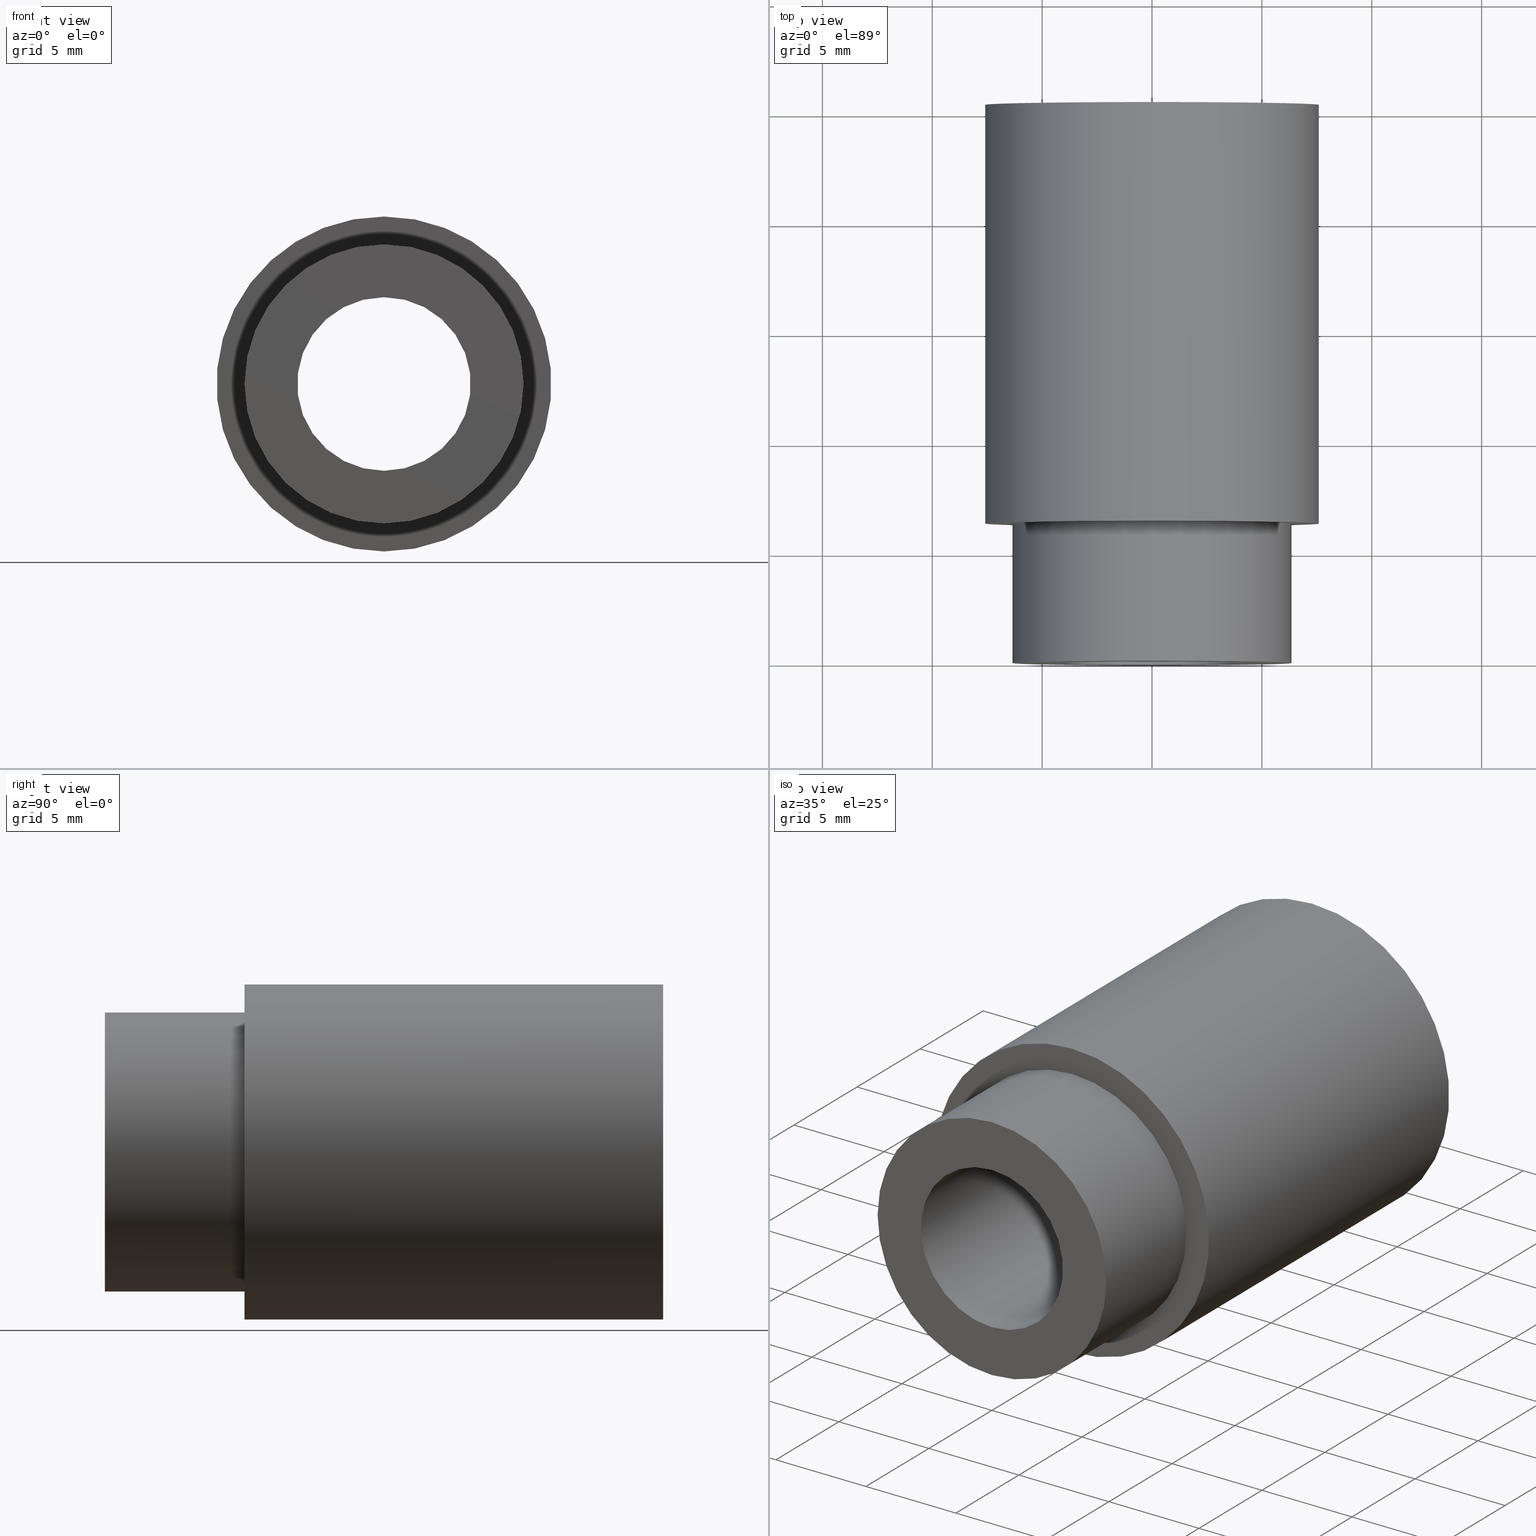
[diagram: canonical four-view strip — front | top / right | iso, engineering-drawing reading convention]
A machine part, canonical four-view strip (front | top / right | iso — engineering-drawing reading convention). The complete STEP part file that produces these views, byte-faithful:
ISO-10303-21;
HEADER;
FILE_DESCRIPTION (( 'STEP AP214' ),
    '1' );
FILE_NAME ('D1002341-v2_aLIGO_SUS_HSTS_Magnet Bushing.STEP',
    '2011-11-29T15:44:18',
    ( '' ),
    ( '' ),
    'SwSTEP 2.0',
    'SolidWorks 2012',
    '' );
FILE_SCHEMA (( 'AUTOMOTIVE_DESIGN' ));
ENDSEC;

DATA;
#1 = SURFACE_STYLE_FILL_AREA ( #52 ) ;
#2 = CYLINDRICAL_SURFACE ( 'NONE', #153, 0.1555000000000000000 ) ;
#3 = LENGTH_MEASURE_WITH_UNIT ( LENGTH_MEASURE( 0.02539999999999999900 ), #59 );
#4 = COLOUR_RGB ( '',0.6980392156862744700, 0.6980392156862744700, 0.6980392156862744700 ) ;
#5 = PRESENTATION_STYLE_ASSIGNMENT (( #50 ) ) ;
#6 = LENGTH_MEASURE_WITH_UNIT ( LENGTH_MEASURE( 0.02539999999999999900 ), #96 );
#7 = SHAPE_DEFINITION_REPRESENTATION ( #144, #159 ) ;
#8 = VERTEX_POINT ( 'NONE', #65 ) ;
#9 = AXIS2_PLACEMENT_3D ( 'NONE', #95, #25, #87 ) ;
#10 = AXIS2_PLACEMENT_3D ( 'NONE', #99, #129, #75 ) ;
#11 = AXIS2_PLACEMENT_3D ( 'NONE', #77, #98, #67 ) ;
#12 = AXIS2_PLACEMENT_3D ( 'NONE', #89, #119, #127 ) ;
#13 = AXIS2_PLACEMENT_3D ( 'NONE', #118, #35, #121 ) ;
#14 = AXIS2_PLACEMENT_3D ( 'NONE', #120, #101, #139 ) ;
#15 = VERTEX_POINT ( 'NONE', #55 ) ;
#16 = PRODUCT ( 'D1002341-v2_aLIGO_SUS_HSTS_Magnet Bushing', 'D1002341-v2_aLIGO_SUS_HSTS_Magnet Bushing', '', ( #132 ) ) ;
#17 = EDGE_CURVE ( 'NONE', #245, #248, #197, .T. ) ;
#18 = EDGE_CURVE ( 'NONE', #142, #181, #195, .T. ) ;
#19 = EDGE_CURVE ( 'NONE', #181, #286, #196, .T. ) ;
#20 = EDGE_CURVE ( 'NONE', #247, #15, #194, .T. ) ;
#21 = EDGE_CURVE ( 'NONE', #143, #15, #199, .T. ) ;
#22 = EDGE_CURVE ( 'NONE', #249, #247, #262, .T. ) ;
#23 = EDGE_CURVE ( 'NONE', #249, #143, #265, .T. ) ;
#24 = APPLICATION_PROTOCOL_DEFINITION ( 'draft international standard', 'automotive_design', 1998, #135 ) ;
#25 = DIRECTION ( 'NONE',  ( -0.0000000000000000000, -1.000000000000000000, -0.0000000000000000000 ) ) ;
#26 = DIRECTION ( 'NONE',  ( -0.0000000000000000000, -1.000000000000000000, -0.0000000000000000000 ) ) ;
#27 = CARTESIAN_POINT ( 'NONE',  ( 0.0000000000000000000, 0.0000000000000000000, 0.0000000000000000000 ) ) ;
#28 = APPLICATION_PROTOCOL_DEFINITION ( 'draft international standard', 'automotive_design', 1998, #42 ) ;
#29 = CARTESIAN_POINT ( 'NONE',  ( 0.0000000000000000000, 1.000000000000000000, -0.1555000000000000000 ) ) ;
#30 = CARTESIAN_POINT ( 'NONE',  ( 0.0000000000000000000, 1.000000000000000000, -0.1555000000000000000 ) ) ;
#31 = CARTESIAN_POINT ( 'NONE',  ( 1.904325772674134300E-017, 1.000000000000000000, 0.1555000000000000000 ) ) ;
#32 = CARTESIAN_POINT ( 'NONE',  ( 0.0000000000000000000, 0.2499999999999999700, 0.0000000000000000000 ) ) ;
#33 = PLANE ( 'NONE',  #14 ) ;
#34 = DIRECTION ( 'NONE',  ( 0.0000000000000000000, 0.0000000000000000000, -1.000000000000000000 ) ) ;
#35 = DIRECTION ( 'NONE',  ( 0.0000000000000000000, 1.000000000000000000, 0.0000000000000000000 ) ) ;
#36 =( NAMED_UNIT ( * ) SI_UNIT ( $, .STERADIAN. ) SOLID_ANGLE_UNIT ( ) );
#37 =( NAMED_UNIT ( * ) PLANE_ANGLE_UNIT ( ) SI_UNIT ( $, .RADIAN. ) );
#38 =( CONVERSION_BASED_UNIT ( 'INCH', #3 ) LENGTH_UNIT ( ) NAMED_UNIT ( #293 ) );
#39 =( NAMED_UNIT ( * ) PLANE_ANGLE_UNIT ( ) SI_UNIT ( $, .RADIAN. ) );
#40 = DIRECTION ( 'NONE',  ( -0.0000000000000000000, -1.000000000000000000, -0.0000000000000000000 ) ) ;
#41 = DIRECTION ( 'NONE',  ( 0.0000000000000000000, 0.0000000000000000000, -1.000000000000000000 ) ) ;
#42 = APPLICATION_CONTEXT ( 'automotive_design' ) ;
#43 = DIRECTION ( 'NONE',  ( 0.0000000000000000000, 0.0000000000000000000, -1.000000000000000000 ) ) ;
#44 = SURFACE_SIDE_STYLE ('',( #1 ) ) ;
#45 = DIRECTION ( 'NONE',  ( 0.0000000000000000000, 1.000000000000000000, 0.0000000000000000000 ) ) ;
#46 = FILL_AREA_STYLE_COLOUR ( '', #4 ) ;
#47 = CARTESIAN_POINT ( 'NONE',  ( 0.0000000000000000000, 1.000000000000000000, 0.0000000000000000000 ) ) ;
#48 = CARTESIAN_POINT ( 'NONE',  ( 1.904325772674134300E-017, 1.000000000000000000, 0.1555000000000000000 ) ) ;
#49 = CARTESIAN_POINT ( 'NONE',  ( 1.904325772674134300E-017, 0.0000000000000000000, 0.1555000000000000000 ) ) ;
#50 = SURFACE_STYLE_USAGE ( .BOTH. , #44 ) ;
#51 = DIRECTION ( 'NONE',  ( 0.0000000000000000000, 0.0000000000000000000, -1.000000000000000000 ) ) ;
#52 = FILL_AREA_STYLE ('',( #46 ) ) ;
#53 = CARTESIAN_POINT ( 'NONE',  ( 3.673940397442058900E-017, 0.0000000000000000000, 0.2999999999999999900 ) ) ;
#54 = DIRECTION ( 'NONE',  ( 0.0000000000000000000, 0.0000000000000000000, -1.000000000000000000 ) ) ;
#55 = CARTESIAN_POINT ( 'NONE',  ( 0.0000000000000000000, 0.0000000000000000000, -0.1555000000000000000 ) ) ;
#56 = CARTESIAN_POINT ( 'NONE',  ( 0.0000000000000000000, -3.061616997868383000E-017, 0.0000000000000000000 ) ) ;
#57 = DIRECTION ( 'NONE',  ( 0.0000000000000000000, -1.000000000000000000, 0.0000000000000000000 ) ) ;
#58 = DIRECTION ( 'NONE',  ( -0.0000000000000000000, -1.000000000000000000, -0.0000000000000000000 ) ) ;
#59 =( LENGTH_UNIT ( ) NAMED_UNIT ( * ) SI_UNIT ( $, .METRE. ) );
#60 = DIRECTION ( 'NONE',  ( 0.0000000000000000000, 0.0000000000000000000, -1.000000000000000000 ) ) ;
#61 = CARTESIAN_POINT ( 'NONE',  ( 0.0000000000000000000, 0.0000000000000000000, 0.0000000000000000000 ) ) ;
#62 =( NAMED_UNIT ( * ) SI_UNIT ( $, .STERADIAN. ) SOLID_ANGLE_UNIT ( ) );
#63 = DIRECTION ( 'NONE',  ( -0.0000000000000000000, -1.000000000000000000, -0.0000000000000000000 ) ) ;
#64 = CARTESIAN_POINT ( 'NONE',  ( 3.061616997868383000E-017, -3.061616997868383000E-017, 0.2500000000000000000 ) ) ;
#65 = CARTESIAN_POINT ( 'NONE',  ( 0.0000000000000000000, -3.061616997868383000E-017, -0.2500000000000000000 ) ) ;
#66 = CARTESIAN_POINT ( 'NONE',  ( 0.0000000000000000000, 0.2500000000000000000, -0.2999999999999999900 ) ) ;
#67 = DIRECTION ( 'NONE',  ( 0.0000000000000000000, 0.0000000000000000000, -1.000000000000000000 ) ) ;
#68 = CARTESIAN_POINT ( 'NONE',  ( 0.0000000000000000000, 1.000000000000000000, 0.0000000000000000000 ) ) ;
#69 = CARTESIAN_POINT ( 'NONE',  ( 0.0000000000000000000, -3.061616997868383000E-017, 0.0000000000000000000 ) ) ;
#70 = DIRECTION ( 'NONE',  ( 0.0000000000000000000, -1.000000000000000000, 0.0000000000000000000 ) ) ;
#71 = DIRECTION ( 'NONE',  ( 0.0000000000000000000, 0.0000000000000000000, -1.000000000000000000 ) ) ;
#72 = CARTESIAN_POINT ( 'NONE',  ( 0.0000000000000000000, 0.0000000000000000000, -0.2500000000000000000 ) ) ;
#73 = CARTESIAN_POINT ( 'NONE',  ( 0.0000000000000000000, 0.2499999999999999700, -0.2500000000000000000 ) ) ;
#74 = CARTESIAN_POINT ( 'NONE',  ( 3.673940397442058900E-017, 0.2500000000000000000, 0.2999999999999999900 ) ) ;
#75 = DIRECTION ( 'NONE',  ( 0.0000000000000000000, 0.0000000000000000000, -1.000000000000000000 ) ) ;
#76 = PLANE ( 'NONE',  #13 ) ;
#77 = CARTESIAN_POINT ( 'NONE',  ( 0.0000000000000000000, 1.000000000000000000, 0.0000000000000000000 ) ) ;
#78 = CARTESIAN_POINT ( 'NONE',  ( -0.2500000000000000000, 0.2500000000000000000, 0.0000000000000000000 ) ) ;
#79 = CARTESIAN_POINT ( 'NONE',  ( 0.0000000000000000000, 1.000000000000000000, 0.0000000000000000000 ) ) ;
#80 = DIRECTION ( 'NONE',  ( 0.0000000000000000000, 0.0000000000000000000, -1.000000000000000000 ) ) ;
#81 = DIRECTION ( 'NONE',  ( 0.0000000000000000000, 0.0000000000000000000, -1.000000000000000000 ) ) ;
#82 = DIRECTION ( 'NONE',  ( -0.0000000000000000000, -1.000000000000000000, -0.0000000000000000000 ) ) ;
#83 = SURFACE_STYLE_USAGE ( .BOTH. , #90 ) ;
#84 =( LENGTH_UNIT ( ) NAMED_UNIT ( * ) SI_UNIT ( $, .METRE. ) );
#85 =( CONVERSION_BASED_UNIT ( 'INCH', #269 ) LENGTH_UNIT ( ) NAMED_UNIT ( #299 ) );
#86 = DIRECTION ( 'NONE',  ( 0.0000000000000000000, 0.0000000000000000000, -1.000000000000000000 ) ) ;
#87 = DIRECTION ( 'NONE',  ( 0.0000000000000000000, 0.0000000000000000000, -1.000000000000000000 ) ) ;
#88 = CARTESIAN_POINT ( 'NONE',  ( 0.0000000000000000000, 0.2500000000000000000, 0.0000000000000000000 ) ) ;
#89 = CARTESIAN_POINT ( 'NONE',  ( 0.0000000000000000000, 0.0000000000000000000, 0.0000000000000000000 ) ) ;
#90 = SURFACE_SIDE_STYLE ('',( #266 ) ) ;
#91 =( NAMED_UNIT ( * ) PLANE_ANGLE_UNIT ( ) SI_UNIT ( $, .RADIAN. ) );
#92 = DIRECTION ( 'NONE',  ( 0.0000000000000000000, -1.000000000000000000, 0.0000000000000000000 ) ) ;
#93 = FILL_AREA_STYLE_COLOUR ( '', #267 ) ;
#94 = CARTESIAN_POINT ( 'NONE',  ( 0.0000000000000000000, 1.000000000000000000, 0.0000000000000000000 ) ) ;
#95 = CARTESIAN_POINT ( 'NONE',  ( 0.0000000000000000000, 0.0000000000000000000, 0.0000000000000000000 ) ) ;
#96 =( LENGTH_UNIT ( ) NAMED_UNIT ( * ) SI_UNIT ( $, .METRE. ) );
#97 =( NAMED_UNIT ( * ) SI_UNIT ( $, .STERADIAN. ) SOLID_ANGLE_UNIT ( ) );
#98 = DIRECTION ( 'NONE',  ( -0.0000000000000000000, -1.000000000000000000, -0.0000000000000000000 ) ) ;
#99 = CARTESIAN_POINT ( 'NONE',  ( 0.0000000000000000000, 0.0000000000000000000, 0.0000000000000000000 ) ) ;
#100 = DIRECTION ( 'NONE',  ( -0.0000000000000000000, -1.000000000000000000, -0.0000000000000000000 ) ) ;
#101 = DIRECTION ( 'NONE',  ( 0.0000000000000000000, -1.000000000000000000, -0.0000000000000000000 ) ) ;
#102 = DIRECTION ( 'NONE',  ( -0.0000000000000000000, -1.000000000000000000, -0.0000000000000000000 ) ) ;
#103 = DIRECTION ( 'NONE',  ( -0.0000000000000000000, -1.000000000000000000, -0.0000000000000000000 ) ) ;
#104 = DIRECTION ( 'NONE',  ( 0.0000000000000000000, -0.0000000000000000000, 1.000000000000000000 ) ) ;
#105 = DIRECTION ( 'NONE',  ( 0.0000000000000000000, 0.0000000000000000000, -1.000000000000000000 ) ) ;
#106 = PLANE ( 'NONE',  #151 ) ;
#107 = CARTESIAN_POINT ( 'NONE',  ( 0.0000000000000000000, 0.0000000000000000000, 0.0000000000000000000 ) ) ;
#108 = CARTESIAN_POINT ( 'NONE',  ( 0.0000000000000000000, 1.000000000000000000, 0.0000000000000000000 ) ) ;
#109 = DIRECTION ( 'NONE',  ( -0.0000000000000000000, -1.000000000000000000, -0.0000000000000000000 ) ) ;
#110 = DIRECTION ( 'NONE',  ( -0.0000000000000000000, -1.000000000000000000, -0.0000000000000000000 ) ) ;
#111 = CARTESIAN_POINT ( 'NONE',  ( 3.673940397442058900E-017, 1.000000000000000000, 0.2999999999999999900 ) ) ;
#112 = DIRECTION ( 'NONE',  ( -0.0000000000000000000, -1.000000000000000000, -0.0000000000000000000 ) ) ;
#113 = CARTESIAN_POINT ( 'NONE',  ( 0.0000000000000000000, 0.0000000000000000000, -0.2999999999999999900 ) ) ;
#114 = DIRECTION ( 'NONE',  ( 0.0000000000000000000, 0.0000000000000000000, -1.000000000000000000 ) ) ;
#115 = DIRECTION ( 'NONE',  ( 0.0000000000000000000, -1.000000000000000000, 0.0000000000000000000 ) ) ;
#116 = FILL_AREA_STYLE ('',( #93 ) ) ;
#117 = DIRECTION ( 'NONE',  ( 0.0000000000000000000, 0.0000000000000000000, -1.000000000000000000 ) ) ;
#118 = CARTESIAN_POINT ( 'NONE',  ( 0.0000000000000000000, -1.530808498934191500E-017, 0.0000000000000000000 ) ) ;
#119 = DIRECTION ( 'NONE',  ( -0.0000000000000000000, -1.000000000000000000, -0.0000000000000000000 ) ) ;
#120 = CARTESIAN_POINT ( 'NONE',  ( -0.2999999999999999900, 1.000000000000000000, 0.0000000000000000000 ) ) ;
#121 = DIRECTION ( 'NONE',  ( 0.0000000000000000000, -0.0000000000000000000, 1.000000000000000000 ) ) ;
#122 = CARTESIAN_POINT ( 'NONE',  ( 0.0000000000000000000, 1.000000000000000000, -0.2999999999999999900 ) ) ;
#123 = DIRECTION ( 'NONE',  ( -0.0000000000000000000, -1.000000000000000000, -0.0000000000000000000 ) ) ;
#124 = DIRECTION ( 'NONE',  ( 0.0000000000000000000, 0.0000000000000000000, 1.000000000000000000 ) ) ;
#125 = CARTESIAN_POINT ( 'NONE',  ( 3.061616997868383000E-017, 0.2499999999999999700, 0.2500000000000000000 ) ) ;
#126 = DIRECTION ( 'NONE',  ( -0.0000000000000000000, -1.000000000000000000, -0.0000000000000000000 ) ) ;
#127 = DIRECTION ( 'NONE',  ( 0.0000000000000000000, 0.0000000000000000000, -1.000000000000000000 ) ) ;
#128 = DIRECTION ( 'NONE',  ( -0.0000000000000000000, -1.000000000000000000, -0.0000000000000000000 ) ) ;
#129 = DIRECTION ( 'NONE',  ( -0.0000000000000000000, -1.000000000000000000, -0.0000000000000000000 ) ) ;
#130 =( CONVERSION_BASED_UNIT ( 'INCH', #6 ) LENGTH_UNIT ( ) NAMED_UNIT ( #298 ) );
#131 = CARTESIAN_POINT ( 'NONE',  ( 0.0000000000000000000, 0.2499999999999999700, 0.0000000000000000000 ) ) ;
#132 = PRODUCT_CONTEXT ( 'NONE', #42, 'mechanical' ) ;
#133 = DIRECTION ( 'NONE',  ( 1.000000000000000000, 0.0000000000000000000, 0.0000000000000000000 ) ) ;
#134 = DIRECTION ( 'NONE',  ( 0.0000000000000000000, 0.0000000000000000000, -1.000000000000000000 ) ) ;
#135 = APPLICATION_CONTEXT ( 'automotive_design' ) ;
#136 = DIRECTION ( 'NONE',  ( -0.0000000000000000000, -1.000000000000000000, -0.0000000000000000000 ) ) ;
#137 = CARTESIAN_POINT ( 'NONE',  ( 3.061616997868383000E-017, 0.0000000000000000000, 0.2500000000000000000 ) ) ;
#138 = CARTESIAN_POINT ( 'NONE',  ( 0.0000000000000000000, 0.0000000000000000000, 0.0000000000000000000 ) ) ;
#139 = DIRECTION ( 'NONE',  ( 0.0000000000000000000, 0.0000000000000000000, -1.000000000000000000 ) ) ;
#140 = DIRECTION ( 'NONE',  ( -0.0000000000000000000, -1.000000000000000000, -0.0000000000000000000 ) ) ;
#141 = CARTESIAN_POINT ( 'NONE',  ( 0.0000000000000000000, 0.2500000000000000000, 0.0000000000000000000 ) ) ;
#142 = VERTEX_POINT ( 'NONE', #122 ) ;
#143 = VERTEX_POINT ( 'NONE', #29 ) ;
#144 = PRODUCT_DEFINITION_SHAPE ( 'NONE', 'NONE',  #163 ) ;
#145 = PRODUCT_DEFINITION_CONTEXT ( 'detailed design', #135, 'design' ) ;
#146 = EDGE_LOOP ( 'NONE', ( #189, #252 ) ) ;
#147 = EDGE_LOOP ( 'NONE', ( #231, #255 ) ) ;
#148 = EDGE_LOOP ( 'NONE', ( #188, #260, #253, #261 ) ) ;
#149 = EDGE_LOOP ( 'NONE', ( #258, #254, #256, #257 ) ) ;
#150 =( GEOMETRIC_REPRESENTATION_CONTEXT ( 3 ) GLOBAL_UNCERTAINTY_ASSIGNED_CONTEXT ( ( #156 ) ) GLOBAL_UNIT_ASSIGNED_CONTEXT ( ( #38, #37, #97 ) ) REPRESENTATION_CONTEXT ( 'NONE', 'WORKASPACE' ) );
#151 = AXIS2_PLACEMENT_3D ( 'NONE', #78, #45, #104 ) ;
#152 = STYLED_ITEM ( 'NONE', ( #5 ), #159 ) ;
#153 = AXIS2_PLACEMENT_3D ( 'NONE', #47, #109, #105 ) ;
#154 = PRESENTATION_LAYER_ASSIGNMENT (  '', '', ( #152 ) ) ;
#155 = MECHANICAL_DESIGN_GEOMETRIC_PRESENTATION_REPRESENTATION (  '', ( #152 ), #161 ) ;
#156 = UNCERTAINTY_MEASURE_WITH_UNIT (LENGTH_MEASURE( 1.000000000000000100E-005 ), #38, 'distance_accuracy_value', 'NONE');
#157 = UNCERTAINTY_MEASURE_WITH_UNIT (LENGTH_MEASURE( 1.000000000000000100E-005 ), #85, 'distance_accuracy_value', 'NONE');
#158 = MANIFOLD_SOLID_BREP ( 'Cut-Extrude1', #184 ) ;
#159 = ADVANCED_BREP_SHAPE_REPRESENTATION ( 'D1002341-v2_aLIGO_SUS_HSTS_Magnet Bushing', ( #158, #162 ), #150 ) ;
#160 = UNCERTAINTY_MEASURE_WITH_UNIT (LENGTH_MEASURE( 1.000000000000000100E-005 ), #130, 'distance_accuracy_value', 'NONE');
#161 =( GEOMETRIC_REPRESENTATION_CONTEXT ( 3 ) GLOBAL_UNCERTAINTY_ASSIGNED_CONTEXT ( ( #160 ) ) GLOBAL_UNIT_ASSIGNED_CONTEXT ( ( #130, #91, #62 ) ) REPRESENTATION_CONTEXT ( 'NONE', 'WORKASPACE' ) );
#162 = AXIS2_PLACEMENT_3D ( 'NONE', #138, #124, #133 ) ;
#163 = PRODUCT_DEFINITION ( 'UNKNOWN', '', #164, #145 ) ;
#164 = PRODUCT_DEFINITION_FORMATION_WITH_SPECIFIED_SOURCE ( 'ANY', '', #16, .NOT_KNOWN. ) ;
#165 = PRODUCT_RELATED_PRODUCT_CATEGORY ( 'part', '', ( #16 ) ) ;
#166 = FACE_OUTER_BOUND ( 'NONE', #185, .T. ) ;
#167 = FACE_OUTER_BOUND ( 'NONE', #303, .T. ) ;
#168 = CYLINDRICAL_SURFACE ( 'NONE', #213, 0.2500000000000000000 ) ;
#169 = FACE_OUTER_BOUND ( 'NONE', #149, .T. ) ;
#170 = CYLINDRICAL_SURFACE ( 'NONE', #9, 0.2999999999999999900 ) ;
#171 = FACE_OUTER_BOUND ( 'NONE', #148, .T. ) ;
#172 = CYLINDRICAL_SURFACE ( 'NONE', #10, 0.2500000000000000000 ) ;
#173 = FACE_BOUND ( 'NONE', #302, .T. ) ;
#174 = CYLINDRICAL_SURFACE ( 'NONE', #11, 0.1555000000000000000 ) ;
#175 = CYLINDRICAL_SURFACE ( 'NONE', #12, 0.2999999999999999900 ) ;
#176 = FACE_OUTER_BOUND ( 'NONE', #300, .T. ) ;
#177 = FACE_BOUND ( 'NONE', #285, .T. ) ;
#178 = FACE_OUTER_BOUND ( 'NONE', #287, .T. ) ;
#179 = FACE_OUTER_BOUND ( 'NONE', #183, .T. ) ;
#180 = FACE_OUTER_BOUND ( 'NONE', #146, .T. ) ;
#181 = VERTEX_POINT ( 'NONE', #111 ) ;
#182 = VECTOR ( 'NONE', #58, 39.37007874015748100 ) ;
#183 = EDGE_LOOP ( 'NONE', ( #241, #230, #233, #228 ) ) ;
#184 = CLOSED_SHELL ( 'NONE', ( #297, #289, #290, #294, #288, #296, #292, #295, #291 ) ) ;
#185 = EDGE_LOOP ( 'NONE', ( #187, #259, #238, #232 ) ) ;
#186 = ORIENTED_EDGE ( 'NONE', *, *, #273, .T. ) ;
#187 = ORIENTED_EDGE ( 'NONE', *, *, #17, .F. ) ;
#188 = ORIENTED_EDGE ( 'NONE', *, *, #19, .F. ) ;
#189 = ORIENTED_EDGE ( 'NONE', *, *, #280, .T. ) ;
#190 = ORIENTED_EDGE ( 'NONE', *, *, #279, .F. ) ;
#191 = ORIENTED_EDGE ( 'NONE', *, *, #280, .F. ) ;
#192 = ORIENTED_EDGE ( 'NONE', *, *, #270, .T. ) ;
#193 = ORIENTED_EDGE ( 'NONE', *, *, #271, .F. ) ;
#194 = CIRCLE ( 'NONE', #282, 0.1555000000000000000 ) ;
#195 = CIRCLE ( 'NONE', #281, 0.2999999999999999900 ) ;
#196 = LINE ( 'NONE', #53, #200 ) ;
#197 = LINE ( 'NONE', #137, #198 ) ;
#198 = VECTOR ( 'NONE', #40, 39.37007874015748100 ) ;
#199 = LINE ( 'NONE', #30, #182 ) ;
#200 = VECTOR ( 'NONE', #110, 39.37007874015748100 ) ;
#201 = PRESENTATION_LAYER_ASSIGNMENT (  '', '', ( #284 ) ) ;
#202 = MECHANICAL_DESIGN_GEOMETRIC_PRESENTATION_REPRESENTATION (  '', ( #284 ), #203 ) ;
#203 =( GEOMETRIC_REPRESENTATION_CONTEXT ( 3 ) GLOBAL_UNCERTAINTY_ASSIGNED_CONTEXT ( ( #157 ) ) GLOBAL_UNIT_ASSIGNED_CONTEXT ( ( #85, #39, #36 ) ) REPRESENTATION_CONTEXT ( 'NONE', 'WORKASPACE' ) );
#204 = AXIS2_PLACEMENT_3D ( 'NONE', #69, #136, #51 ) ;
#205 = AXIS2_PLACEMENT_3D ( 'NONE', #107, #115, #134 ) ;
#206 = AXIS2_PLACEMENT_3D ( 'NONE', #56, #128, #54 ) ;
#207 = AXIS2_PLACEMENT_3D ( 'NONE', #32, #103, #71 ) ;
#208 = AXIS2_PLACEMENT_3D ( 'NONE', #88, #123, #86 ) ;
#209 = AXIS2_PLACEMENT_3D ( 'NONE', #94, #140, #114 ) ;
#210 = AXIS2_PLACEMENT_3D ( 'NONE', #79, #70, #34 ) ;
#211 = AXIS2_PLACEMENT_3D ( 'NONE', #131, #82, #117 ) ;
#212 = AXIS2_PLACEMENT_3D ( 'NONE', #141, #102, #43 ) ;
#213 = AXIS2_PLACEMENT_3D ( 'NONE', #61, #26, #41 ) ;
#214 = CIRCLE ( 'NONE', #206, 0.2500000000000000000 ) ;
#215 = VECTOR ( 'NONE', #63, 39.37007874015748100 ) ;
#216 = CIRCLE ( 'NONE', #209, 0.2999999999999999900 ) ;
#217 = CIRCLE ( 'NONE', #204, 0.2500000000000000000 ) ;
#218 = CIRCLE ( 'NONE', #205, 0.1555000000000000000 ) ;
#219 = LINE ( 'NONE', #72, #215 ) ;
#220 = CIRCLE ( 'NONE', #207, 0.2500000000000000000 ) ;
#221 = CIRCLE ( 'NONE', #208, 0.2999999999999999900 ) ;
#222 = CIRCLE ( 'NONE', #210, 0.1555000000000000000 ) ;
#223 = FACE_OUTER_BOUND ( 'NONE', #301, .T. ) ;
#224 = CIRCLE ( 'NONE', #211, 0.2500000000000000000 ) ;
#225 = LINE ( 'NONE', #113, #227 ) ;
#226 = CIRCLE ( 'NONE', #212, 0.2999999999999999900 ) ;
#227 = VECTOR ( 'NONE', #112, 39.37007874015748100 ) ;
#228 = ORIENTED_EDGE ( 'NONE', *, *, #21, .F. ) ;
#229 = ORIENTED_EDGE ( 'NONE', *, *, #18, .T. ) ;
#230 = ORIENTED_EDGE ( 'NONE', *, *, #22, .T. ) ;
#231 = ORIENTED_EDGE ( 'NONE', *, *, #277, .T. ) ;
#232 = ORIENTED_EDGE ( 'NONE', *, *, #273, .F. ) ;
#233 = ORIENTED_EDGE ( 'NONE', *, *, #20, .T. ) ;
#234 = ORIENTED_EDGE ( 'NONE', *, *, #17, .T. ) ;
#235 = ORIENTED_EDGE ( 'NONE', *, *, #20, .F. ) ;
#236 = ORIENTED_EDGE ( 'NONE', *, *, #278, .T. ) ;
#237 = ORIENTED_EDGE ( 'NONE', *, *, #19, .T. ) ;
#238 = ORIENTED_EDGE ( 'NONE', *, *, #271, .T. ) ;
#239 = ORIENTED_EDGE ( 'NONE', *, *, #278, .F. ) ;
#240 = ORIENTED_EDGE ( 'NONE', *, *, #276, .F. ) ;
#241 = ORIENTED_EDGE ( 'NONE', *, *, #23, .F. ) ;
#242 = ORIENTED_EDGE ( 'NONE', *, *, #272, .F. ) ;
#243 = ORIENTED_EDGE ( 'NONE', *, *, #18, .F. ) ;
#244 = ORIENTED_EDGE ( 'NONE', *, *, #270, .F. ) ;
#245 = VERTEX_POINT ( 'NONE', #125 ) ;
#246 = VERTEX_POINT ( 'NONE', #73 ) ;
#247 = VERTEX_POINT ( 'NONE', #49 ) ;
#248 = VERTEX_POINT ( 'NONE', #64 ) ;
#249 = VERTEX_POINT ( 'NONE', #48 ) ;
#250 = VERTEX_POINT ( 'NONE', #66 ) ;
#251 = ORIENTED_EDGE ( 'NONE', *, *, #274, .F. ) ;
#252 = ORIENTED_EDGE ( 'NONE', *, *, #275, .T. ) ;
#253 = ORIENTED_EDGE ( 'NONE', *, *, #279, .T. ) ;
#254 = ORIENTED_EDGE ( 'NONE', *, *, #277, .F. ) ;
#255 = ORIENTED_EDGE ( 'NONE', *, *, #23, .T. ) ;
#256 = ORIENTED_EDGE ( 'NONE', *, *, #21, .T. ) ;
#257 = ORIENTED_EDGE ( 'NONE', *, *, #272, .T. ) ;
#258 = ORIENTED_EDGE ( 'NONE', *, *, #22, .F. ) ;
#259 = ORIENTED_EDGE ( 'NONE', *, *, #274, .T. ) ;
#260 = ORIENTED_EDGE ( 'NONE', *, *, #276, .T. ) ;
#261 = ORIENTED_EDGE ( 'NONE', *, *, #275, .F. ) ;
#262 = LINE ( 'NONE', #31, #263 ) ;
#263 = VECTOR ( 'NONE', #126, 39.37007874015748100 ) ;
#264 = FACE_BOUND ( 'NONE', #147, .T. ) ;
#265 = CIRCLE ( 'NONE', #283, 0.1555000000000000000 ) ;
#266 = SURFACE_STYLE_FILL_AREA ( #116 ) ;
#267 = COLOUR_RGB ( '',0.6980392156862744700, 0.6980392156862744700, 0.6980392156862744700 ) ;
#268 = PRESENTATION_STYLE_ASSIGNMENT (( #83 ) ) ;
#269 = LENGTH_MEASURE_WITH_UNIT ( LENGTH_MEASURE( 0.02539999999999999900 ), #84 );
#270 = EDGE_CURVE ( 'NONE', #8, #248, #217, .T. ) ;
#271 = EDGE_CURVE ( 'NONE', #246, #8, #219, .T. ) ;
#272 = EDGE_CURVE ( 'NONE', #15, #247, #218, .T. ) ;
#273 = EDGE_CURVE ( 'NONE', #248, #8, #214, .T. ) ;
#274 = EDGE_CURVE ( 'NONE', #245, #246, #220, .T. ) ;
#275 = EDGE_CURVE ( 'NONE', #286, #250, #221, .T. ) ;
#276 = EDGE_CURVE ( 'NONE', #181, #142, #216, .T. ) ;
#277 = EDGE_CURVE ( 'NONE', #143, #249, #222, .T. ) ;
#278 = EDGE_CURVE ( 'NONE', #246, #245, #224, .T. ) ;
#279 = EDGE_CURVE ( 'NONE', #142, #250, #225, .T. ) ;
#280 = EDGE_CURVE ( 'NONE', #250, #286, #226, .T. ) ;
#281 = AXIS2_PLACEMENT_3D ( 'NONE', #68, #100, #80 ) ;
#282 = AXIS2_PLACEMENT_3D ( 'NONE', #27, #57, #60 ) ;
#283 = AXIS2_PLACEMENT_3D ( 'NONE', #108, #92, #81 ) ;
#284 = STYLED_ITEM ( 'NONE', ( #268 ), #158 ) ;
#285 = EDGE_LOOP ( 'NONE', ( #239, #251 ) ) ;
#286 = VERTEX_POINT ( 'NONE', #74 ) ;
#287 = EDGE_LOOP ( 'NONE', ( #243, #240 ) ) ;
#288 = ADVANCED_FACE ( 'NONE', ( #166 ), #168, .T. ) ;
#289 = ADVANCED_FACE ( 'NONE', ( #223 ), #170, .T. ) ;
#290 = ADVANCED_FACE ( 'NONE', ( #167 ), #172, .T. ) ;
#291 = ADVANCED_FACE ( 'NONE', ( #169 ), #174, .F. ) ;
#292 = ADVANCED_FACE ( 'NONE', ( #171 ), #175, .T. ) ;
#293 = DIMENSIONAL_EXPONENTS ( 1.000000000000000000, 0.0000000000000000000, 0.0000000000000000000, 0.0000000000000000000, 0.0000000000000000000, 0.0000000000000000000, 0.0000000000000000000 ) ;
#294 = ADVANCED_FACE ( 'NONE', ( #173, #176 ), #76, .F. ) ;
#295 = ADVANCED_FACE ( 'NONE', ( #264, #178 ), #33, .F. ) ;
#296 = ADVANCED_FACE ( 'NONE', ( #177, #180 ), #106, .F. ) ;
#297 = ADVANCED_FACE ( 'NONE', ( #179 ), #2, .F. ) ;
#298 = DIMENSIONAL_EXPONENTS ( 1.000000000000000000, 0.0000000000000000000, 0.0000000000000000000, 0.0000000000000000000, 0.0000000000000000000, 0.0000000000000000000, 0.0000000000000000000 ) ;
#299 = DIMENSIONAL_EXPONENTS ( 1.000000000000000000, 0.0000000000000000000, 0.0000000000000000000, 0.0000000000000000000, 0.0000000000000000000, 0.0000000000000000000, 0.0000000000000000000 ) ;
#300 = EDGE_LOOP ( 'NONE', ( #192, #186 ) ) ;
#301 = EDGE_LOOP ( 'NONE', ( #229, #237, #191, #190 ) ) ;
#302 = EDGE_LOOP ( 'NONE', ( #242, #235 ) ) ;
#303 = EDGE_LOOP ( 'NONE', ( #236, #234, #244, #193 ) ) ;
ENDSEC;
END-ISO-10303-21;
